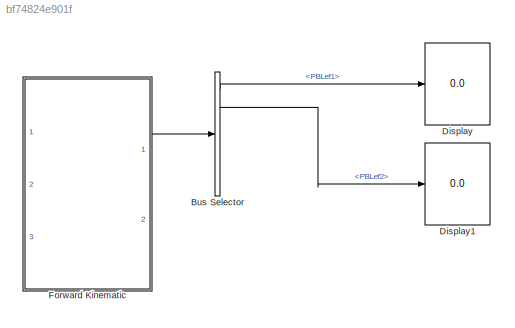
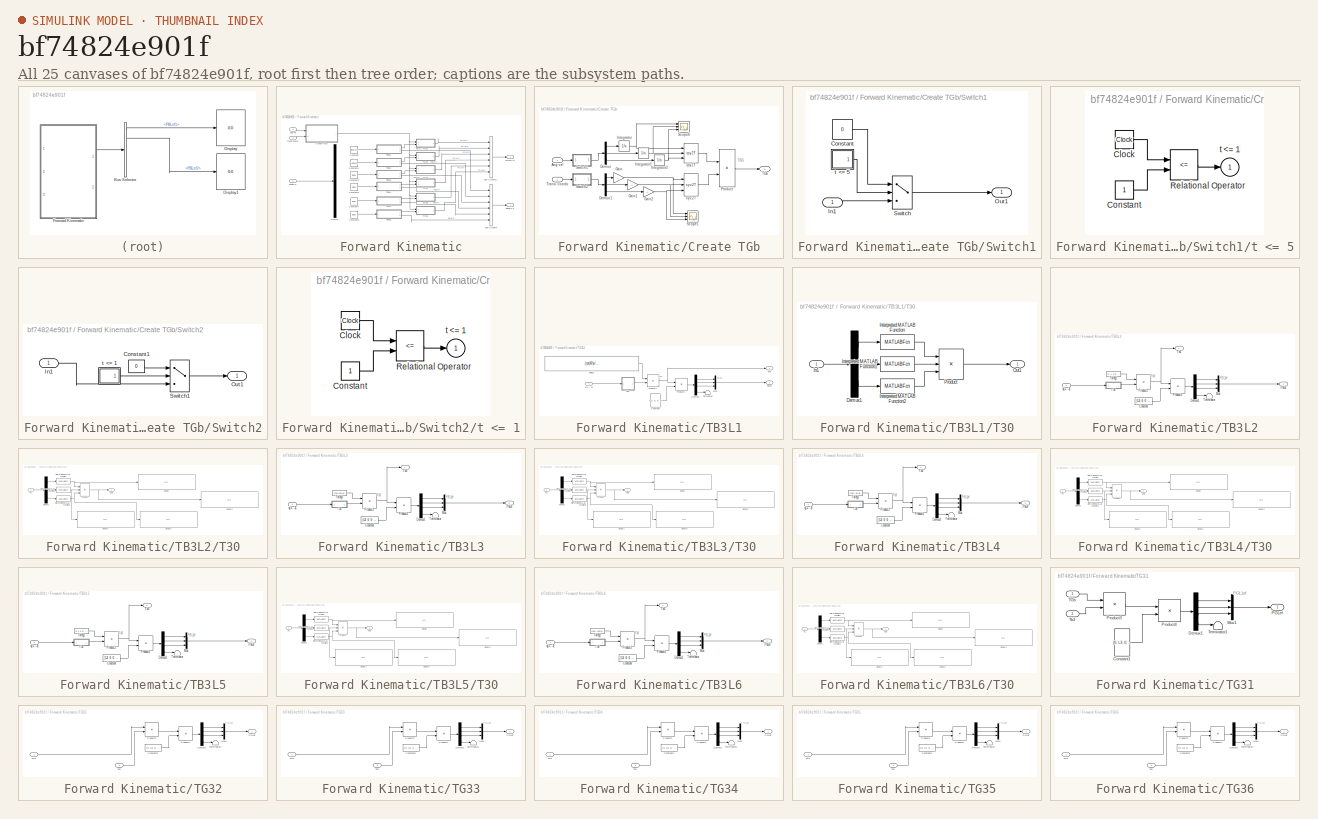
[diagram: thumbnail index - all 25 canvases of the model, root first then tree order]
MODEL slx_bf74824e901f
KIND model
CONFIG AbsTol = auto
CONFIG FixedStep = auto
CONFIG MaxStep = auto
CONFIG MinStep = auto
CONFIG RelTol = 1e-3
CONFIG SampleTimeConstraint = Unconstrained
CONFIG Solver = ode45
CONFIG SolverMode = Auto
CONFIG SolverName = ode45
CONFIG StartTime = 0.0
CONFIG StopTime = 10.0
BLOCK [BusSelector] Bus Selector
  OutputSignals = PBLef1,PBLef2,PBLef3,PBLef4,PBLef5,PBLef6
  Ports = [1, 6]
BLOCK [Display] Display
  Decimation = 1
  Ports = [1]
BLOCK [Display] Display1
  Decimation = 1
  Ports = [1]
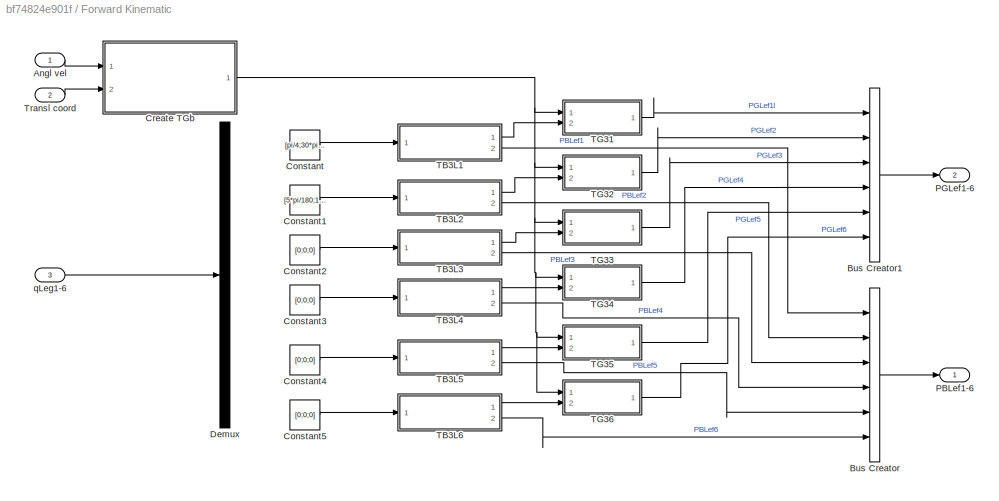
BLOCK [SubSystem] Forward Kinematic
  Ports = [3, 2]
  RequestExecContextInheritance = off
BLOCK [Inport] Forward Kinematic/Angl vel
  IconDisplay = Port number
BLOCK [BusCreator] Forward Kinematic/Bus Creator
  DisplayOption = bar
  Inputs = 6
  Ports = [6, 1]
BLOCK [BusCreator] Forward Kinematic/Bus Creator1
  DisplayOption = bar
  Inputs = 6
  Ports = [6, 1]
BLOCK [Constant] Forward Kinematic/Constant
  Value = [pi/4;30*pi/180;0]
BLOCK [Constant] Forward Kinematic/Constant1
  Value = [5*pi/180;18*pi/180;27*pi/180]
BLOCK [Constant] Forward Kinematic/Constant2
  Value = [0;0;0]
BLOCK [Constant] Forward Kinematic/Constant3
  Value = [0;0;0]
BLOCK [Constant] Forward Kinematic/Constant4
  Value = [0;0;0]
BLOCK [Constant] Forward Kinematic/Constant5
  Value = [0;0;0]
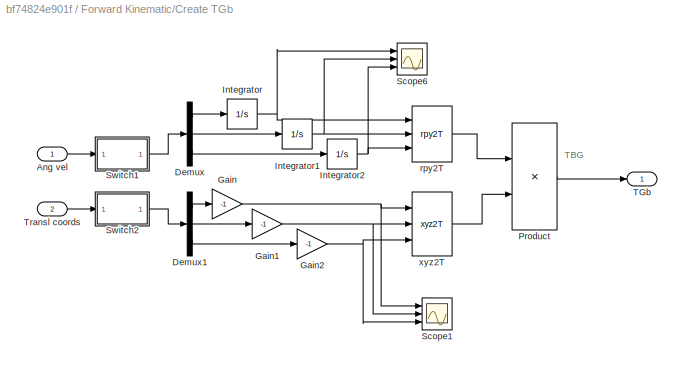
BLOCK [SubSystem] Forward Kinematic/Create TGb
  Ports = [2, 1]
  RequestExecContextInheritance = off
BLOCK [Inport] Forward Kinematic/Create TGb/Ang vel
  IconDisplay = Port number
BLOCK [Demux] Forward Kinematic/Create TGb/Demux
  DisplayOption = bar
  Outputs = 3
  Ports = [1, 3]
BLOCK [Demux] Forward Kinematic/Create TGb/Demux1
  DisplayOption = bar
  Outputs = 3
  Ports = [1, 3]
BLOCK [Gain] Forward Kinematic/Create TGb/Gain
  Gain = -1
  OutDataTypeStr = Inherit: Inherit via internal rule
  ParamDataTypeStr = Inherit: Inherit via internal rule
  SaturateOnIntegerOverflow = off
BLOCK [Gain] Forward Kinematic/Create TGb/Gain1
  Gain = -1
  OutDataTypeStr = Inherit: Inherit via internal rule
  ParamDataTypeStr = Inherit: Inherit via internal rule
  SaturateOnIntegerOverflow = off
BLOCK [Gain] Forward Kinematic/Create TGb/Gain2
  Gain = -1
  OutDataTypeStr = Inherit: Inherit via internal rule
  ParamDataTypeStr = Inherit: Inherit via internal rule
  SaturateOnIntegerOverflow = off
BLOCK [Integrator] Forward Kinematic/Create TGb/Integrator
  Ports = [1, 1]
BLOCK [Integrator] Forward Kinematic/Create TGb/Integrator1
  Ports = [1, 1]
BLOCK [Integrator] Forward Kinematic/Create TGb/Integrator2
  Ports = [1, 1]
BLOCK [Product] Forward Kinematic/Create TGb/Product
  InputSameDT = off
  Multiplication = Matrix(*)
  OutDataTypeStr = Inherit: Inherit via internal rule
  Ports = [2, 1]
  RndMeth = Floor
  SaturateOnIntegerOverflow = off
BLOCK [Scope] Forward Kinematic/Create TGb/Scope1
  Floating = off
  LimitDataPoints = off
  NumInputPorts = 3
  Ports = [3]
  SaveName = ScopeData38
  YMax = 20~5~5
  YMin = -15~-5~-5
BLOCK [Scope] Forward Kinematic/Create TGb/Scope6
  Floating = off
  LimitDataPoints = off
  NumInputPorts = 3
  Ports = [3]
  SaveName = ScopeData48
  YMax = 20~5~5
  YMin = -15~-5~-5
BLOCK [SubSystem] Forward Kinematic/Create TGb/Switch1
  Ports = [1, 1]
  RequestExecContextInheritance = off
BLOCK [Constant] Forward Kinematic/Create TGb/Switch1/Constant
  Value = 0
BLOCK [Inport] Forward Kinematic/Create TGb/Switch1/In1
  IconDisplay = Port number
BLOCK [Outport] Forward Kinematic/Create TGb/Switch1/Out1
  IconDisplay = Port number
BLOCK [Switch] Forward Kinematic/Create TGb/Switch1/Switch
  Threshold = 0.5
BLOCK [SubSystem] Forward Kinematic/Create TGb/Switch1/t <= 5
  Ports = [0, 1]
  RequestExecContextInheritance = off
BLOCK [Clock] Forward Kinematic/Create TGb/Switch1/t <= 5/Clock
BLOCK [Constant] Forward Kinematic/Create TGb/Switch1/t <= 5/Constant
BLOCK [RelationalOperator] Forward Kinematic/Create TGb/Switch1/t <= 5/Relational Operator
  Operator = <=
  Ports = [2, 1]
BLOCK [Outport] Forward Kinematic/Create TGb/Switch1/t <= 5/t <= 1
  IconDisplay = Port number
  InitialOutput = 0
BLOCK [SubSystem] Forward Kinematic/Create TGb/Switch2
  Ports = [1, 1]
  RequestExecContextInheritance = off
BLOCK [Constant] Forward Kinematic/Create TGb/Switch2/Constant1
  Value = 0
BLOCK [Inport] Forward Kinematic/Create TGb/Switch2/In1
  IconDisplay = Port number
BLOCK [Outport] Forward Kinematic/Create TGb/Switch2/Out1
  IconDisplay = Port number
BLOCK [Switch] Forward Kinematic/Create TGb/Switch2/Switch1
  Threshold = 0.5
BLOCK [SubSystem] Forward Kinematic/Create TGb/Switch2/t <= 1
  Ports = [0, 1]
  RequestExecContextInheritance = off
BLOCK [Clock] Forward Kinematic/Create TGb/Switch2/t <= 1/Clock
BLOCK [Constant] Forward Kinematic/Create TGb/Switch2/t <= 1/Constant
BLOCK [RelationalOperator] Forward Kinematic/Create TGb/Switch2/t <= 1/Relational Operator
  Operator = <=
  Ports = [2, 1]
BLOCK [Outport] Forward Kinematic/Create TGb/Switch2/t <= 1/t <= 1
  IconDisplay = Port number
  InitialOutput = 0
BLOCK [Outport] Forward Kinematic/Create TGb/TGb
  IconDisplay = Port number
BLOCK [Inport] Forward Kinematic/Create TGb/Transl coords
  IconDisplay = Port number
  Port = 2
BLOCK [Reference] Forward Kinematic/Create TGb/rpy2T  REF=roblocks/Transform Conversion/rpy2T  (lib defined in mdl_2a292b13c81b, mdl_69400f8cfe22, +12 more)
  Ports = [3, 1]
  SourceBlock = roblocks/Transform Conversion/rpy2T
BLOCK [Reference] Forward Kinematic/Create TGb/xyz2T  REF=roblocks/Transform Conversion/xyz2T  (lib defined in mdl_2a292b13c81b, mdl_69400f8cfe22, +12 more)
  Ports = [3, 1]
  SourceBlock = roblocks/Transform Conversion/xyz2T
BLOCK [Demux] Forward Kinematic/Demux
  DisplayOption = bar
  Outputs = 6
  Ports = [1, 6]
BLOCK [Outport] Forward Kinematic/PBLef1-6
  IconDisplay = Port number
BLOCK [Outport] Forward Kinematic/PGLef1-6
  IconDisplay = Port number
  Port = 2
BLOCK [SubSystem] Forward Kinematic/TB3L1
  Ports = [1, 2]
  RequestExecContextInheritance = off
BLOCK [Constant] Forward Kinematic/TB3L1/Constant
  Value = [L3; 0; 0; 1]
  VectorParams1D = off
BLOCK [Demux] Forward Kinematic/TB3L1/Demux2
  DisplayOption = bar
  Ports = [1, 4]
BLOCK [Mux] Forward Kinematic/TB3L1/Mux
  DisplayOption = bar
  Inputs = 3
  Ports = [3, 1]
BLOCK [Outport] Forward Kinematic/TB3L1/PbLef
  IconDisplay = Port number
  Port = 2
BLOCK [Product] Forward Kinematic/TB3L1/Product1
  InputSameDT = off
  Multiplication = Matrix(*)
  OutDataTypeStr = Inherit: Inherit via internal rule
  Ports = [2, 1]
  RndMeth = Floor
  SaturateOnIntegerOverflow = off
BLOCK [Product] Forward Kinematic/TB3L1/Product2
  InputSameDT = off
  Multiplication = Matrix(*)
  OutDataTypeStr = Inherit: Inherit via internal rule
  Ports = [2, 1]
  RndMeth = Floor
  SaturateOnIntegerOverflow = off
BLOCK [SubSystem] Forward Kinematic/TB3L1/T30
  Ports = [1, 1]
  RequestExecContextInheritance = off
BLOCK [Demux] Forward Kinematic/TB3L1/T30/Demux1
  DisplayOption = bar
  Outputs = 3
  Ports = [1, 3]
BLOCK [Inport] Forward Kinematic/TB3L1/T30/In1
  IconDisplay = Port number
BLOCK [MATLABFcn] Forward Kinematic/TB3L1/T30/Interpreted MATLAB Function
  MATLABFcn = [cos(u) -sin(u) 0 0; sin(u) cos(u) 0 0; 0 0 1 d1; 0 0 0 1]
  Output1D = off
  Ports = [1, 1]
BLOCK [MATLABFcn] Forward Kinematic/TB3L1/T30/Interpreted MATLAB Function1
  MATLABFcn = [cos(u) -sin(u) 0 L1; 0 0 -1 0; sin(u) cos(u) 0 -abs(d2); 0 0 0 1]
  Output1D = off
  Ports = [1, 1]
BLOCK [MATLABFcn] Forward Kinematic/TB3L1/T30/Interpreted MATLAB Function2
  MATLABFcn = [cos(u+90*pi/180) -sin(u+90*pi/180) 0 L2; -sin(u+90*pi/180) -cos(u+90*pi/180) 0 0; 0 0 -1 0; 0 0 0 1]
  Output1D = off
  Ports = [1, 1]
BLOCK [Outport] Forward Kinematic/TB3L1/T30/Out1
  IconDisplay = Port number
BLOCK [Product] Forward Kinematic/TB3L1/T30/Product
  InputSameDT = off
  Inputs = 3
  Multiplication = Matrix(*)
  OutDataTypeStr = Inherit: Inherit via internal rule
  Ports = [3, 1]
  RndMeth = Floor
  SaturateOnIntegerOverflow = off
BLOCK [Outport] Forward Kinematic/TB3L1/Tb3
  IconDisplay = Port number
BLOCK [Constant] Forward Kinematic/TB3L1/Tbleg1
  Value = [cos(45*pi/180) -sin(45*pi/180) 0 bL/2; sin(45*pi/180) cos(45*pi/180) 0 bWs/2; 0 0 1 0; 0 0 0 1]
  VectorParams1D = off
BLOCK [Terminator] Forward Kinematic/TB3L1/Terminator
BLOCK [Inport] Forward Kinematic/TB3L1/q[1...3]
  IconDisplay = Port number
BLOCK [SubSystem] Forward Kinematic/TB3L2
  Ports = [1, 2]
  RequestExecContextInheritance = off
BLOCK [Constant] Forward Kinematic/TB3L2/Constant
  Value = [L3; 0; 0; 1]
  VectorParams1D = off
BLOCK [Demux] Forward Kinematic/TB3L2/Demux2
  DisplayOption = bar
  Ports = [1, 4]
BLOCK [Mux] Forward Kinematic/TB3L2/Mux
  DisplayOption = bar
  Inputs = 3
  Ports = [3, 1]
BLOCK [Outport] Forward Kinematic/TB3L2/PbLef
  IconDisplay = Port number
  Port = 2
BLOCK [Product] Forward Kinematic/TB3L2/Product1
  InputSameDT = off
  Multiplication = Matrix(*)
  OutDataTypeStr = Inherit: Inherit via internal rule
  Ports = [2, 1]
  RndMeth = Floor
  SaturateOnIntegerOverflow = off
BLOCK [Product] Forward Kinematic/TB3L2/Product2
  InputSameDT = off
  Multiplication = Matrix(*)
  OutDataTypeStr = Inherit: Inherit via internal rule
  Ports = [2, 1]
  RndMeth = Floor
  SaturateOnIntegerOverflow = off
BLOCK [SubSystem] Forward Kinematic/TB3L2/T30
  Ports = [1, 1]
  RequestExecContextInheritance = off
BLOCK [Demux] Forward Kinematic/TB3L2/T30/Demux1
  DisplayOption = bar
  Outputs = 3
  Ports = [1, 3]
BLOCK [Display] Forward Kinematic/TB3L2/T30/Display
  Decimation = 1
  Ports = [1]
BLOCK [Display] Forward Kinematic/TB3L2/T30/Display1
  Decimation = 1
  Ports = [1]
BLOCK [Display] Forward Kinematic/TB3L2/T30/Display2
  Decimation = 1
  Ports = [1]
BLOCK [Display] Forward Kinematic/TB3L2/T30/Display3
  Decimation = 1
  Ports = [1]
BLOCK [Inport] Forward Kinematic/TB3L2/T30/In1
  IconDisplay = Port number
BLOCK [MATLABFcn] Forward Kinematic/TB3L2/T30/Interpreted MATLAB Function
  MATLABFcn = [cos(u) -sin(u) 0 0; sin(u) cos(u) 0 0; 0 0 1 d1; 0 0 0 1]
  Output1D = off
  Ports = [1, 1]
BLOCK [MATLABFcn] Forward Kinematic/TB3L2/T30/Interpreted MATLAB Function1
  MATLABFcn = [cos(u) -sin(u) 0 L1; 0 0 -1 0; sin(u) cos(u) 0 -abs(d2); 0 0 0 1]
  Output1D = off
  Ports = [1, 1]
BLOCK [MATLABFcn] Forward Kinematic/TB3L2/T30/Interpreted MATLAB Function2
  MATLABFcn = [cos(u+90*pi/180) -sin(u+90*pi/180) 0 L2; -sin(u+90*pi/180) -cos(u+90*pi/180) 0 0; 0 0 -1 0; 0 0 0 1]
  Output1D = off
  Ports = [1, 1]
BLOCK [Outport] Forward Kinematic/TB3L2/T30/Out1
  IconDisplay = Port number
BLOCK [Product] Forward Kinematic/TB3L2/T30/Product
  InputSameDT = off
  Inputs = 3
  Multiplication = Matrix(*)
  OutDataTypeStr = Inherit: Inherit via internal rule
  Ports = [3, 1]
  RndMeth = Floor
  SaturateOnIntegerOverflow = off
BLOCK [Outport] Forward Kinematic/TB3L2/Tb3
  IconDisplay = Port number
BLOCK [Constant] Forward Kinematic/TB3L2/Tbleg1
  Value = [0 -1 0 0; 1 0 0 bWb/2; 0 0 1 0; 0 0 0 1]
  VectorParams1D = off
BLOCK [Terminator] Forward Kinematic/TB3L2/Terminator
BLOCK [Inport] Forward Kinematic/TB3L2/q[1...3]
  IconDisplay = Port number
BLOCK [SubSystem] Forward Kinematic/TB3L3
  Ports = [1, 2]
  RequestExecContextInheritance = off
BLOCK [Constant] Forward Kinematic/TB3L3/Constant
  Value = [L3; 0; 0; 1]
  VectorParams1D = off
BLOCK [Demux] Forward Kinematic/TB3L3/Demux2
  DisplayOption = bar
  Ports = [1, 4]
BLOCK [Mux] Forward Kinematic/TB3L3/Mux
  DisplayOption = bar
  Inputs = 3
  Ports = [3, 1]
BLOCK [Outport] Forward Kinematic/TB3L3/PbLef
  IconDisplay = Port number
  Port = 2
BLOCK [Product] Forward Kinematic/TB3L3/Product1
  InputSameDT = off
  Multiplication = Matrix(*)
  OutDataTypeStr = Inherit: Inherit via internal rule
  Ports = [2, 1]
  RndMeth = Floor
  SaturateOnIntegerOverflow = off
BLOCK [Product] Forward Kinematic/TB3L3/Product2
  InputSameDT = off
  Multiplication = Matrix(*)
  OutDataTypeStr = Inherit: Inherit via internal rule
  Ports = [2, 1]
  RndMeth = Floor
  SaturateOnIntegerOverflow = off
BLOCK [SubSystem] Forward Kinematic/TB3L3/T30
  Ports = [1, 1]
  RequestExecContextInheritance = off
BLOCK [Demux] Forward Kinematic/TB3L3/T30/Demux1
  DisplayOption = bar
  Outputs = 3
  Ports = [1, 3]
BLOCK [Display] Forward Kinematic/TB3L3/T30/Display
  Decimation = 1
  Ports = [1]
BLOCK [Display] Forward Kinematic/TB3L3/T30/Display1
  Decimation = 1
  Ports = [1]
BLOCK [Display] Forward Kinematic/TB3L3/T30/Display2
  Decimation = 1
  Ports = [1]
BLOCK [Display] Forward Kinematic/TB3L3/T30/Display3
  Decimation = 1
  Ports = [1]
BLOCK [Inport] Forward Kinematic/TB3L3/T30/In1
  IconDisplay = Port number
BLOCK [MATLABFcn] Forward Kinematic/TB3L3/T30/Interpreted MATLAB Function
  MATLABFcn = [cos(u) -sin(u) 0 0; sin(u) cos(u) 0 0; 0 0 1 d1; 0 0 0 1]
  Output1D = off
  Ports = [1, 1]
BLOCK [MATLABFcn] Forward Kinematic/TB3L3/T30/Interpreted MATLAB Function1
  MATLABFcn = [cos(u) -sin(u) 0 L1; 0 0 -1 0; sin(u) cos(u) 0 -abs(d2); 0 0 0 1]
  Output1D = off
  Ports = [1, 1]
BLOCK [MATLABFcn] Forward Kinematic/TB3L3/T30/Interpreted MATLAB Function2
  MATLABFcn = [cos(u+90*pi/180) -sin(u+90*pi/180) 0 L2; -sin(u+90*pi/180) -cos(u+90*pi/180) 0 0; 0 0 -1 0; 0 0 0 1]
  Output1D = off
  Ports = [1, 1]
BLOCK [Outport] Forward Kinematic/TB3L3/T30/Out1
  IconDisplay = Port number
BLOCK [Product] Forward Kinematic/TB3L3/T30/Product
  InputSameDT = off
  Inputs = 3
  Multiplication = Matrix(*)
  OutDataTypeStr = Inherit: Inherit via internal rule
  Ports = [3, 1]
  RndMeth = Floor
  SaturateOnIntegerOverflow = off
BLOCK [Outport] Forward Kinematic/TB3L3/Tb3
  IconDisplay = Port number
BLOCK [Constant] Forward Kinematic/TB3L3/Tbleg3
  Value = [cos(135*pi/180) -sin(135*pi/180) 0 -bL/2; sin(135*pi/180) cos(135*pi/180) 0 bWs/2; 0 0 1 0; 0 0 0 1]
  VectorParams1D = off
BLOCK [Terminator] Forward Kinematic/TB3L3/Terminator
BLOCK [Inport] Forward Kinematic/TB3L3/q[1...3]
  IconDisplay = Port number
BLOCK [SubSystem] Forward Kinematic/TB3L4
  Ports = [1, 2]
  RequestExecContextInheritance = off
BLOCK [Constant] Forward Kinematic/TB3L4/Constant
  Value = [L3; 0; 0; 1]
  VectorParams1D = off
BLOCK [Demux] Forward Kinematic/TB3L4/Demux2
  DisplayOption = bar
  Ports = [1, 4]
BLOCK [Mux] Forward Kinematic/TB3L4/Mux
  DisplayOption = bar
  Inputs = 3
  Ports = [3, 1]
BLOCK [Outport] Forward Kinematic/TB3L4/PbLef
  IconDisplay = Port number
  Port = 2
BLOCK [Product] Forward Kinematic/TB3L4/Product1
  InputSameDT = off
  Multiplication = Matrix(*)
  OutDataTypeStr = Inherit: Inherit via internal rule
  Ports = [2, 1]
  RndMeth = Floor
  SaturateOnIntegerOverflow = off
BLOCK [Product] Forward Kinematic/TB3L4/Product2
  InputSameDT = off
  Multiplication = Matrix(*)
  OutDataTypeStr = Inherit: Inherit via internal rule
  Ports = [2, 1]
  RndMeth = Floor
  SaturateOnIntegerOverflow = off
BLOCK [SubSystem] Forward Kinematic/TB3L4/T30
  Ports = [1, 1]
  RequestExecContextInheritance = off
BLOCK [Demux] Forward Kinematic/TB3L4/T30/Demux1
  DisplayOption = bar
  Outputs = 3
  Ports = [1, 3]
BLOCK [Display] Forward Kinematic/TB3L4/T30/Display
  Decimation = 1
  Ports = [1]
BLOCK [Display] Forward Kinematic/TB3L4/T30/Display1
  Decimation = 1
  Ports = [1]
BLOCK [Display] Forward Kinematic/TB3L4/T30/Display2
  Decimation = 1
  Ports = [1]
BLOCK [Display] Forward Kinematic/TB3L4/T30/Display3
  Decimation = 1
  Ports = [1]
BLOCK [Inport] Forward Kinematic/TB3L4/T30/In1
  IconDisplay = Port number
BLOCK [MATLABFcn] Forward Kinematic/TB3L4/T30/Interpreted MATLAB Function
  MATLABFcn = [cos(u) -sin(u) 0 0; sin(u) cos(u) 0 0; 0 0 1 d1; 0 0 0 1]
  Output1D = off
  Ports = [1, 1]
BLOCK [MATLABFcn] Forward Kinematic/TB3L4/T30/Interpreted MATLAB Function1
  MATLABFcn = [cos(u) -sin(u) 0 L1; 0 0 -1 0; sin(u) cos(u) 0 -abs(d2); 0 0 0 1]
  Output1D = off
  Ports = [1, 1]
BLOCK [MATLABFcn] Forward Kinematic/TB3L4/T30/Interpreted MATLAB Function2
  MATLABFcn = [cos(u+90*pi/180) -sin(u+90*pi/180) 0 L2; -sin(u+90*pi/180) -cos(u+90*pi/180) 0 0; 0 0 -1 0; 0 0 0 1]
  Output1D = off
  Ports = [1, 1]
BLOCK [Outport] Forward Kinematic/TB3L4/T30/Out1
  IconDisplay = Port number
BLOCK [Product] Forward Kinematic/TB3L4/T30/Product
  InputSameDT = off
  Inputs = 3
  Multiplication = Matrix(*)
  OutDataTypeStr = Inherit: Inherit via internal rule
  Ports = [3, 1]
  RndMeth = Floor
  SaturateOnIntegerOverflow = off
BLOCK [Outport] Forward Kinematic/TB3L4/Tb3
  IconDisplay = Port number
BLOCK [Constant] Forward Kinematic/TB3L4/Tbleg1
  Value = [cos(-45*pi/180) -sin(-45*pi/180) 0 bL/2; sin(-45*pi/180) cos(-45*pi/180) 0 -bWs/2; 0 0 1 0; 0 0 0 1]
  VectorParams1D = off
BLOCK [Terminator] Forward Kinematic/TB3L4/Terminator
BLOCK [Inport] Forward Kinematic/TB3L4/q[1...3]
  IconDisplay = Port number
BLOCK [SubSystem] Forward Kinematic/TB3L5
  Ports = [1, 2]
  RequestExecContextInheritance = off
BLOCK [Constant] Forward Kinematic/TB3L5/Constant
  Value = [L3; 0; 0; 1]
  VectorParams1D = off
BLOCK [Demux] Forward Kinematic/TB3L5/Demux2
  DisplayOption = bar
  Ports = [1, 4]
BLOCK [Mux] Forward Kinematic/TB3L5/Mux
  DisplayOption = bar
  Inputs = 3
  Ports = [3, 1]
BLOCK [Outport] Forward Kinematic/TB3L5/PbLef
  IconDisplay = Port number
  Port = 2
BLOCK [Product] Forward Kinematic/TB3L5/Product1
  InputSameDT = off
  Multiplication = Matrix(*)
  OutDataTypeStr = Inherit: Inherit via internal rule
  Ports = [2, 1]
  RndMeth = Floor
  SaturateOnIntegerOverflow = off
BLOCK [Product] Forward Kinematic/TB3L5/Product2
  InputSameDT = off
  Multiplication = Matrix(*)
  OutDataTypeStr = Inherit: Inherit via internal rule
  Ports = [2, 1]
  RndMeth = Floor
  SaturateOnIntegerOverflow = off
BLOCK [SubSystem] Forward Kinematic/TB3L5/T30
  Ports = [1, 1]
  RequestExecContextInheritance = off
BLOCK [Demux] Forward Kinematic/TB3L5/T30/Demux1
  DisplayOption = bar
  Outputs = 3
  Ports = [1, 3]
BLOCK [Display] Forward Kinematic/TB3L5/T30/Display
  Decimation = 1
  Ports = [1]
BLOCK [Display] Forward Kinematic/TB3L5/T30/Display1
  Decimation = 1
  Ports = [1]
BLOCK [Display] Forward Kinematic/TB3L5/T30/Display2
  Decimation = 1
  Ports = [1]
BLOCK [Display] Forward Kinematic/TB3L5/T30/Display3
  Decimation = 1
  Ports = [1]
BLOCK [Inport] Forward Kinematic/TB3L5/T30/In1
  IconDisplay = Port number
BLOCK [MATLABFcn] Forward Kinematic/TB3L5/T30/Interpreted MATLAB Function
  MATLABFcn = [cos(u) -sin(u) 0 0; sin(u) cos(u) 0 0; 0 0 1 d1; 0 0 0 1]
  Output1D = off
  Ports = [1, 1]
BLOCK [MATLABFcn] Forward Kinematic/TB3L5/T30/Interpreted MATLAB Function1
  MATLABFcn = [cos(u) -sin(u) 0 L1; 0 0 -1 0; sin(u) cos(u) 0 -abs(d2); 0 0 0 1]
  Output1D = off
  Ports = [1, 1]
BLOCK [MATLABFcn] Forward Kinematic/TB3L5/T30/Interpreted MATLAB Function2
  MATLABFcn = [cos(u+90*pi/180) -sin(u+90*pi/180) 0 L2; -sin(u+90*pi/180) -cos(u+90*pi/180) 0 0; 0 0 -1 0; 0 0 0 1]
  Output1D = off
  Ports = [1, 1]
BLOCK [Outport] Forward Kinematic/TB3L5/T30/Out1
  IconDisplay = Port number
BLOCK [Product] Forward Kinematic/TB3L5/T30/Product
  InputSameDT = off
  Inputs = 3
  Multiplication = Matrix(*)
  OutDataTypeStr = Inherit: Inherit via internal rule
  Ports = [3, 1]
  RndMeth = Floor
  SaturateOnIntegerOverflow = off
BLOCK [Outport] Forward Kinematic/TB3L5/Tb3
  IconDisplay = Port number
BLOCK [Constant] Forward Kinematic/TB3L5/Tbleg1
  Value = [0 1 0 0; -1 0 0 -bWb/2; 0 0 1 0; 0 0 0 1]
  VectorParams1D = off
BLOCK [Terminator] Forward Kinematic/TB3L5/Terminator
BLOCK [Inport] Forward Kinematic/TB3L5/q[1...3]
  IconDisplay = Port number
BLOCK [SubSystem] Forward Kinematic/TB3L6
  Ports = [1, 2]
  RequestExecContextInheritance = off
BLOCK [Constant] Forward Kinematic/TB3L6/Constant
  Value = [L3; 0; 0; 1]
  VectorParams1D = off
BLOCK [Demux] Forward Kinematic/TB3L6/Demux2
  DisplayOption = bar
  Ports = [1, 4]
BLOCK [Mux] Forward Kinematic/TB3L6/Mux
  DisplayOption = bar
  Inputs = 3
  Ports = [3, 1]
BLOCK [Outport] Forward Kinematic/TB3L6/PbLef
  IconDisplay = Port number
  Port = 2
BLOCK [Product] Forward Kinematic/TB3L6/Product1
  InputSameDT = off
  Multiplication = Matrix(*)
  OutDataTypeStr = Inherit: Inherit via internal rule
  Ports = [2, 1]
  RndMeth = Floor
  SaturateOnIntegerOverflow = off
BLOCK [Product] Forward Kinematic/TB3L6/Product2
  InputSameDT = off
  Multiplication = Matrix(*)
  OutDataTypeStr = Inherit: Inherit via internal rule
  Ports = [2, 1]
  RndMeth = Floor
  SaturateOnIntegerOverflow = off
BLOCK [SubSystem] Forward Kinematic/TB3L6/T30
  Ports = [1, 1]
  RequestExecContextInheritance = off
BLOCK [Demux] Forward Kinematic/TB3L6/T30/Demux1
  DisplayOption = bar
  Outputs = 3
  Ports = [1, 3]
BLOCK [Display] Forward Kinematic/TB3L6/T30/Display
  Decimation = 1
  Ports = [1]
BLOCK [Display] Forward Kinematic/TB3L6/T30/Display1
  Decimation = 1
  Ports = [1]
BLOCK [Display] Forward Kinematic/TB3L6/T30/Display2
  Decimation = 1
  Ports = [1]
BLOCK [Display] Forward Kinematic/TB3L6/T30/Display3
  Decimation = 1
  Ports = [1]
BLOCK [Inport] Forward Kinematic/TB3L6/T30/In1
  IconDisplay = Port number
BLOCK [MATLABFcn] Forward Kinematic/TB3L6/T30/Interpreted MATLAB Function
  MATLABFcn = [cos(u) -sin(u) 0 0; sin(u) cos(u) 0 0; 0 0 1 d1; 0 0 0 1]
  Output1D = off
  Ports = [1, 1]
BLOCK [MATLABFcn] Forward Kinematic/TB3L6/T30/Interpreted MATLAB Function1
  MATLABFcn = [cos(u) -sin(u) 0 L1; 0 0 -1 0; sin(u) cos(u) 0 -abs(d2); 0 0 0 1]
  Output1D = off
  Ports = [1, 1]
BLOCK [MATLABFcn] Forward Kinematic/TB3L6/T30/Interpreted MATLAB Function2
  MATLABFcn = [cos(u+90*pi/180) -sin(u+90*pi/180) 0 L2; -sin(u+90*pi/180) -cos(u+90*pi/180) 0 0; 0 0 -1 0; 0 0 0 1]
  Output1D = off
  Ports = [1, 1]
BLOCK [Outport] Forward Kinematic/TB3L6/T30/Out1
  IconDisplay = Port number
BLOCK [Product] Forward Kinematic/TB3L6/T30/Product
  InputSameDT = off
  Inputs = 3
  Multiplication = Matrix(*)
  OutDataTypeStr = Inherit: Inherit via internal rule
  Ports = [3, 1]
  RndMeth = Floor
  SaturateOnIntegerOverflow = off
BLOCK [Outport] Forward Kinematic/TB3L6/Tb3
  IconDisplay = Port number
BLOCK [Constant] Forward Kinematic/TB3L6/Tbleg1
  Value = [cos(-135*pi/180) -sin(-135*pi/180) 0 -bL/2; sin(-135*pi/180) cos(-135*pi/180) 0 -bWs/2; 0 0 1 0; 0 0 0 1]
  VectorParams1D = off
BLOCK [Terminator] Forward Kinematic/TB3L6/Terminator
BLOCK [Inport] Forward Kinematic/TB3L6/q[1...3]
  IconDisplay = Port number
BLOCK [SubSystem] Forward Kinematic/TG31
  Ports = [2, 1]
  RequestExecContextInheritance = off
BLOCK [Constant] Forward Kinematic/TG31/Constant1
  Value = [0; L3; 0; 1]
  VectorParams1D = off
BLOCK [Demux] Forward Kinematic/TG31/Demux1
  DisplayOption = bar
  Ports = [1, 4]
BLOCK [Mux] Forward Kinematic/TG31/Mux1
  DisplayOption = bar
  Inputs = 3
  Ports = [3, 1]
BLOCK [Outport] Forward Kinematic/TG31/PGLef
  IconDisplay = Port number
BLOCK [Product] Forward Kinematic/TG31/Product3
  InputSameDT = off
  Multiplication = Matrix(*)
  OutDataTypeStr = Inherit: Inherit via internal rule
  Ports = [2, 1]
  RndMeth = Floor
  SaturateOnIntegerOverflow = off
BLOCK [Product] Forward Kinematic/TG31/Product4
  InputSameDT = off
  Multiplication = Matrix(*)
  OutDataTypeStr = Inherit: Inherit via internal rule
  Ports = [2, 1]
  RndMeth = Floor
  SaturateOnIntegerOverflow = off
BLOCK [Inport] Forward Kinematic/TG31/TGb
  IconDisplay = Port number
BLOCK [Inport] Forward Kinematic/TG31/Tb3
  IconDisplay = Port number
  Port = 2
BLOCK [Terminator] Forward Kinematic/TG31/Terminator1
BLOCK [SubSystem] Forward Kinematic/TG32
  Ports = [2, 1]
  RequestExecContextInheritance = off
BLOCK [Constant] Forward Kinematic/TG32/Constant1
  Value = [0; L3; 0; 1]
  VectorParams1D = off
BLOCK [Demux] Forward Kinematic/TG32/Demux1
  DisplayOption = bar
  Ports = [1, 4]
BLOCK [Mux] Forward Kinematic/TG32/Mux1
  DisplayOption = bar
  Inputs = 3
  Ports = [3, 1]
BLOCK [Outport] Forward Kinematic/TG32/PGLef
  IconDisplay = Port number
BLOCK [Product] Forward Kinematic/TG32/Product3
  InputSameDT = off
  Multiplication = Matrix(*)
  OutDataTypeStr = Inherit: Inherit via internal rule
  Ports = [2, 1]
  RndMeth = Floor
  SaturateOnIntegerOverflow = off
BLOCK [Product] Forward Kinematic/TG32/Product4
  InputSameDT = off
  Multiplication = Matrix(*)
  OutDataTypeStr = Inherit: Inherit via internal rule
  Ports = [2, 1]
  RndMeth = Floor
  SaturateOnIntegerOverflow = off
BLOCK [Inport] Forward Kinematic/TG32/TGb
  IconDisplay = Port number
BLOCK [Inport] Forward Kinematic/TG32/Tb3
  IconDisplay = Port number
  Port = 2
BLOCK [Terminator] Forward Kinematic/TG32/Terminator1
BLOCK [SubSystem] Forward Kinematic/TG33
  Ports = [2, 1]
  RequestExecContextInheritance = off
BLOCK [Constant] Forward Kinematic/TG33/Constant1
  Value = [0; L3; 0; 1]
  VectorParams1D = off
BLOCK [Demux] Forward Kinematic/TG33/Demux1
  DisplayOption = bar
  Ports = [1, 4]
BLOCK [Mux] Forward Kinematic/TG33/Mux1
  DisplayOption = bar
  Inputs = 3
  Ports = [3, 1]
BLOCK [Outport] Forward Kinematic/TG33/PGLef
  IconDisplay = Port number
BLOCK [Product] Forward Kinematic/TG33/Product3
  InputSameDT = off
  Multiplication = Matrix(*)
  OutDataTypeStr = Inherit: Inherit via internal rule
  Ports = [2, 1]
  RndMeth = Floor
  SaturateOnIntegerOverflow = off
BLOCK [Product] Forward Kinematic/TG33/Product4
  InputSameDT = off
  Multiplication = Matrix(*)
  OutDataTypeStr = Inherit: Inherit via internal rule
  Ports = [2, 1]
  RndMeth = Floor
  SaturateOnIntegerOverflow = off
BLOCK [Inport] Forward Kinematic/TG33/TGb
  IconDisplay = Port number
BLOCK [Inport] Forward Kinematic/TG33/Tb3
  IconDisplay = Port number
  Port = 2
BLOCK [Terminator] Forward Kinematic/TG33/Terminator1
BLOCK [SubSystem] Forward Kinematic/TG34
  Ports = [2, 1]
  RequestExecContextInheritance = off
BLOCK [Constant] Forward Kinematic/TG34/Constant1
  Value = [0; L3; 0; 1]
  VectorParams1D = off
BLOCK [Demux] Forward Kinematic/TG34/Demux1
  DisplayOption = bar
  Ports = [1, 4]
BLOCK [Mux] Forward Kinematic/TG34/Mux1
  DisplayOption = bar
  Inputs = 3
  Ports = [3, 1]
BLOCK [Outport] Forward Kinematic/TG34/PGLef
  IconDisplay = Port number
BLOCK [Product] Forward Kinematic/TG34/Product3
  InputSameDT = off
  Multiplication = Matrix(*)
  OutDataTypeStr = Inherit: Inherit via internal rule
  Ports = [2, 1]
  RndMeth = Floor
  SaturateOnIntegerOverflow = off
BLOCK [Product] Forward Kinematic/TG34/Product4
  InputSameDT = off
  Multiplication = Matrix(*)
  OutDataTypeStr = Inherit: Inherit via internal rule
  Ports = [2, 1]
  RndMeth = Floor
  SaturateOnIntegerOverflow = off
BLOCK [Inport] Forward Kinematic/TG34/TGb
  IconDisplay = Port number
BLOCK [Inport] Forward Kinematic/TG34/Tb3
  IconDisplay = Port number
  Port = 2
BLOCK [Terminator] Forward Kinematic/TG34/Terminator1
BLOCK [SubSystem] Forward Kinematic/TG35
  Ports = [2, 1]
  RequestExecContextInheritance = off
BLOCK [Constant] Forward Kinematic/TG35/Constant1
  Value = [0; L3; 0; 1]
  VectorParams1D = off
BLOCK [Demux] Forward Kinematic/TG35/Demux1
  DisplayOption = bar
  Ports = [1, 4]
BLOCK [Mux] Forward Kinematic/TG35/Mux1
  DisplayOption = bar
  Inputs = 3
  Ports = [3, 1]
BLOCK [Outport] Forward Kinematic/TG35/PGLef
  IconDisplay = Port number
BLOCK [Product] Forward Kinematic/TG35/Product3
  InputSameDT = off
  Multiplication = Matrix(*)
  OutDataTypeStr = Inherit: Inherit via internal rule
  Ports = [2, 1]
  RndMeth = Floor
  SaturateOnIntegerOverflow = off
BLOCK [Product] Forward Kinematic/TG35/Product4
  InputSameDT = off
  Multiplication = Matrix(*)
  OutDataTypeStr = Inherit: Inherit via internal rule
  Ports = [2, 1]
  RndMeth = Floor
  SaturateOnIntegerOverflow = off
BLOCK [Inport] Forward Kinematic/TG35/TGb
  IconDisplay = Port number
BLOCK [Inport] Forward Kinematic/TG35/Tb3
  IconDisplay = Port number
  Port = 2
BLOCK [Terminator] Forward Kinematic/TG35/Terminator1
BLOCK [SubSystem] Forward Kinematic/TG36
  Ports = [2, 1]
  RequestExecContextInheritance = off
BLOCK [Constant] Forward Kinematic/TG36/Constant1
  Value = [0; L3; 0; 1]
  VectorParams1D = off
BLOCK [Demux] Forward Kinematic/TG36/Demux1
  DisplayOption = bar
  Ports = [1, 4]
BLOCK [Mux] Forward Kinematic/TG36/Mux1
  DisplayOption = bar
  Inputs = 3
  Ports = [3, 1]
BLOCK [Outport] Forward Kinematic/TG36/PGLef
  IconDisplay = Port number
BLOCK [Product] Forward Kinematic/TG36/Product3
  InputSameDT = off
  Multiplication = Matrix(*)
  OutDataTypeStr = Inherit: Inherit via internal rule
  Ports = [2, 1]
  RndMeth = Floor
  SaturateOnIntegerOverflow = off
BLOCK [Product] Forward Kinematic/TG36/Product4
  InputSameDT = off
  Multiplication = Matrix(*)
  OutDataTypeStr = Inherit: Inherit via internal rule
  Ports = [2, 1]
  RndMeth = Floor
  SaturateOnIntegerOverflow = off
BLOCK [Inport] Forward Kinematic/TG36/TGb
  IconDisplay = Port number
BLOCK [Inport] Forward Kinematic/TG36/Tb3
  IconDisplay = Port number
  Port = 2
BLOCK [Terminator] Forward Kinematic/TG36/Terminator1
BLOCK [Inport] Forward Kinematic/Transl coord
  IconDisplay = Port number
  Port = 2
BLOCK [Inport] Forward Kinematic/qLeg1-6
  IconDisplay = Port number
  Port = 3
ANNOTATION Forward Kinematic/Create TGb: TBG
ANNOTATION Forward Kinematic/TB3L1: PBL1ef
ANNOTATION Forward Kinematic/TB3L1: Tb3
ANNOTATION Forward Kinematic/TB3L2: PBL1ef
ANNOTATION Forward Kinematic/TB3L2: Tb3
ANNOTATION Forward Kinematic/TB3L3: PBL1ef
ANNOTATION Forward Kinematic/TB3L3: Tb3
ANNOTATION Forward Kinematic/TB3L4: PBL1ef
ANNOTATION Forward Kinematic/TB3L4: Tb3
ANNOTATION Forward Kinematic/TB3L5: PBL1ef
ANNOTATION Forward Kinematic/TB3L5: Tb3
ANNOTATION Forward Kinematic/TB3L6: PBL1ef
ANNOTATION Forward Kinematic/TB3L6: Tb3
ANNOTATION Forward Kinematic/TG31: PGL1ef
ANNOTATION Forward Kinematic/TG32: PGL1ef
ANNOTATION Forward Kinematic/TG33: PGL1ef
ANNOTATION Forward Kinematic/TG34: PGL1ef
ANNOTATION Forward Kinematic/TG35: PGL1ef
ANNOTATION Forward Kinematic/TG36: PGL1ef
LINE Bus Selector:1 -> Display:1
LINE Bus Selector:2 -> Display1:1
LINE Forward Kinematic/Angl vel:1 -> Forward Kinematic/Create TGb:1
LINE Forward Kinematic/Bus Creator1:1 -> Forward Kinematic/PGLef1-6:1
LINE Forward Kinematic/Bus Creator:1 -> Forward Kinematic/PBLef1-6:1
LINE Forward Kinematic/Constant1:1 -> Forward Kinematic/TB3L2:1
LINE Forward Kinematic/Constant2:1 -> Forward Kinematic/TB3L3:1
LINE Forward Kinematic/Constant3:1 -> Forward Kinematic/TB3L4:1
LINE Forward Kinematic/Constant4:1 -> Forward Kinematic/TB3L5:1
LINE Forward Kinematic/Constant5:1 -> Forward Kinematic/TB3L6:1
LINE Forward Kinematic/Constant:1 -> Forward Kinematic/TB3L1:1
LINE Forward Kinematic/Create TGb/Ang vel:1 -> Forward Kinematic/Create TGb/Switch1:1
LINE Forward Kinematic/Create TGb/Demux1:1 -> Forward Kinematic/Create TGb/Gain:1
LINE Forward Kinematic/Create TGb/Demux1:2 -> Forward Kinematic/Create TGb/Gain1:1
LINE Forward Kinematic/Create TGb/Demux1:3 -> Forward Kinematic/Create TGb/Gain2:1
LINE Forward Kinematic/Create TGb/Demux:1 -> Forward Kinematic/Create TGb/Integrator:1
LINE Forward Kinematic/Create TGb/Demux:2 -> Forward Kinematic/Create TGb/Integrator1:1
LINE Forward Kinematic/Create TGb/Demux:3 -> Forward Kinematic/Create TGb/Integrator2:1
NET Forward Kinematic/Create TGb/Gain1:1 -> Forward Kinematic/Create TGb/Scope1:2, Forward Kinematic/Create TGb/xyz2T:2
NET Forward Kinematic/Create TGb/Gain2:1 -> Forward Kinematic/Create TGb/Scope1:3, Forward Kinematic/Create TGb/xyz2T:3
NET Forward Kinematic/Create TGb/Gain:1 -> Forward Kinematic/Create TGb/Scope1:1, Forward Kinematic/Create TGb/xyz2T:1
NET Forward Kinematic/Create TGb/Integrator1:1 -> Forward Kinematic/Create TGb/Scope6:2, Forward Kinematic/Create TGb/rpy2T:2
NET Forward Kinematic/Create TGb/Integrator2:1 -> Forward Kinematic/Create TGb/Scope6:3, Forward Kinematic/Create TGb/rpy2T:3
NET Forward Kinematic/Create TGb/Integrator:1 -> Forward Kinematic/Create TGb/Scope6:1, Forward Kinematic/Create TGb/rpy2T:1
LINE Forward Kinematic/Create TGb/Product:1 -> Forward Kinematic/Create TGb/TGb:1
LINE Forward Kinematic/Create TGb/Switch1/Constant:1 -> Forward Kinematic/Create TGb/Switch1/Switch:1
LINE Forward Kinematic/Create TGb/Switch1/In1:1 -> Forward Kinematic/Create TGb/Switch1/Switch:3
LINE Forward Kinematic/Create TGb/Switch1/Switch:1 -> Forward Kinematic/Create TGb/Switch1/Out1:1
LINE Forward Kinematic/Create TGb/Switch1/t <= 5/Clock:1 -> Forward Kinematic/Create TGb/Switch1/t <= 5/Relational Operator:1
LINE Forward Kinematic/Create TGb/Switch1/t <= 5/Constant:1 -> Forward Kinematic/Create TGb/Switch1/t <= 5/Relational Operator:2
LINE Forward Kinematic/Create TGb/Switch1/t <= 5/Relational Operator:1 -> Forward Kinematic/Create TGb/Switch1/t <= 5/t <= 1:1
LINE Forward Kinematic/Create TGb/Switch1/t <= 5:1 -> Forward Kinematic/Create TGb/Switch1/Switch:2
LINE Forward Kinematic/Create TGb/Switch1:1 -> Forward Kinematic/Create TGb/Demux:1
LINE Forward Kinematic/Create TGb/Switch2/Constant1:1 -> Forward Kinematic/Create TGb/Switch2/Switch1:1
LINE Forward Kinematic/Create TGb/Switch2/In1:1 -> Forward Kinematic/Create TGb/Switch2/Switch1:3
LINE Forward Kinematic/Create TGb/Switch2/Switch1:1 -> Forward Kinematic/Create TGb/Switch2/Out1:1
LINE Forward Kinematic/Create TGb/Switch2/t <= 1/Clock:1 -> Forward Kinematic/Create TGb/Switch2/t <= 1/Relational Operator:1
LINE Forward Kinematic/Create TGb/Switch2/t <= 1/Constant:1 -> Forward Kinematic/Create TGb/Switch2/t <= 1/Relational Operator:2
LINE Forward Kinematic/Create TGb/Switch2/t <= 1/Relational Operator:1 -> Forward Kinematic/Create TGb/Switch2/t <= 1/t <= 1:1
LINE Forward Kinematic/Create TGb/Switch2/t <= 1:1 -> Forward Kinematic/Create TGb/Switch2/Switch1:2
LINE Forward Kinematic/Create TGb/Switch2:1 -> Forward Kinematic/Create TGb/Demux1:1
LINE Forward Kinematic/Create TGb/Transl coords:1 -> Forward Kinematic/Create TGb/Switch2:1
LINE Forward Kinematic/Create TGb/rpy2T:1 -> Forward Kinematic/Create TGb/Product:1
LINE Forward Kinematic/Create TGb/xyz2T:1 -> Forward Kinematic/Create TGb/Product:2
NET Forward Kinematic/Create TGb:1 -> Forward Kinematic/TG31:1, Forward Kinematic/TG32:1, Forward Kinematic/TG33:1, Forward Kinematic/TG34:1, Forward Kinematic/TG35:1, Forward Kinematic/TG36:1
LINE Forward Kinematic/TB3L1/Constant:1 -> Forward Kinematic/TB3L1/Product1:2
LINE Forward Kinematic/TB3L1/Demux2:1 -> Forward Kinematic/TB3L1/Mux:1
LINE Forward Kinematic/TB3L1/Demux2:2 -> Forward Kinematic/TB3L1/Mux:2
LINE Forward Kinematic/TB3L1/Demux2:3 -> Forward Kinematic/TB3L1/Mux:3
LINE Forward Kinematic/TB3L1/Demux2:4 -> Forward Kinematic/TB3L1/Terminator:1
LINE Forward Kinematic/TB3L1/Mux:1 -> Forward Kinematic/TB3L1/PbLef:1
LINE Forward Kinematic/TB3L1/Product1:1 -> Forward Kinematic/TB3L1/Demux2:1
NET Forward Kinematic/TB3L1/Product2:1 -> Forward Kinematic/TB3L1/Product1:1, Forward Kinematic/TB3L1/Tb3:1
LINE Forward Kinematic/TB3L1/T30/Demux1:1 -> Forward Kinematic/TB3L1/T30/Interpreted MATLAB Function:1
LINE Forward Kinematic/TB3L1/T30/Demux1:2 -> Forward Kinematic/TB3L1/T30/Interpreted MATLAB Function1:1
LINE Forward Kinematic/TB3L1/T30/Demux1:3 -> Forward Kinematic/TB3L1/T30/Interpreted MATLAB Function2:1
LINE Forward Kinematic/TB3L1/T30/In1:1 -> Forward Kinematic/TB3L1/T30/Demux1:1
LINE Forward Kinematic/TB3L1/T30/Interpreted MATLAB Function1:1 -> Forward Kinematic/TB3L1/T30/Product:2
LINE Forward Kinematic/TB3L1/T30/Interpreted MATLAB Function2:1 -> Forward Kinematic/TB3L1/T30/Product:3
LINE Forward Kinematic/TB3L1/T30/Interpreted MATLAB Function:1 -> Forward Kinematic/TB3L1/T30/Product:1
LINE Forward Kinematic/TB3L1/T30/Product:1 -> Forward Kinematic/TB3L1/T30/Out1:1
LINE Forward Kinematic/TB3L1/T30:1 -> Forward Kinematic/TB3L1/Product2:2
LINE Forward Kinematic/TB3L1/Tbleg1:1 -> Forward Kinematic/TB3L1/Product2:1
LINE Forward Kinematic/TB3L1/q[1...3]:1 -> Forward Kinematic/TB3L1/T30:1
LINE Forward Kinematic/TB3L1:1 -> Forward Kinematic/TG31:2
LINE Forward Kinematic/TB3L1:2 -> Forward Kinematic/Bus Creator:1
LINE Forward Kinematic/TB3L2/Constant:1 -> Forward Kinematic/TB3L2/Product1:2
LINE Forward Kinematic/TB3L2/Demux2:1 -> Forward Kinematic/TB3L2/Mux:1
LINE Forward Kinematic/TB3L2/Demux2:2 -> Forward Kinematic/TB3L2/Mux:2
LINE Forward Kinematic/TB3L2/Demux2:3 -> Forward Kinematic/TB3L2/Mux:3
LINE Forward Kinematic/TB3L2/Demux2:4 -> Forward Kinematic/TB3L2/Terminator:1
LINE Forward Kinematic/TB3L2/Mux:1 -> Forward Kinematic/TB3L2/PbLef:1
LINE Forward Kinematic/TB3L2/Product1:1 -> Forward Kinematic/TB3L2/Demux2:1
NET Forward Kinematic/TB3L2/Product2:1 -> Forward Kinematic/TB3L2/Product1:1, Forward Kinematic/TB3L2/Tb3:1
LINE Forward Kinematic/TB3L2/T30/Demux1:1 -> Forward Kinematic/TB3L2/T30/Interpreted MATLAB Function:1
LINE Forward Kinematic/TB3L2/T30/Demux1:2 -> Forward Kinematic/TB3L2/T30/Interpreted MATLAB Function1:1
LINE Forward Kinematic/TB3L2/T30/Demux1:3 -> Forward Kinematic/TB3L2/T30/Interpreted MATLAB Function2:1
LINE Forward Kinematic/TB3L2/T30/In1:1 -> Forward Kinematic/TB3L2/T30/Demux1:1
NET Forward Kinematic/TB3L2/T30/Interpreted MATLAB Function1:1 -> Forward Kinematic/TB3L2/T30/Display1:1, Forward Kinematic/TB3L2/T30/Product:2
NET Forward Kinematic/TB3L2/T30/Interpreted MATLAB Function2:1 -> Forward Kinematic/TB3L2/T30/Display2:1, Forward Kinematic/TB3L2/T30/Product:3
NET Forward Kinematic/TB3L2/T30/Interpreted MATLAB Function:1 -> Forward Kinematic/TB3L2/T30/Display:1, Forward Kinematic/TB3L2/T30/Product:1
NET Forward Kinematic/TB3L2/T30/Product:1 -> Forward Kinematic/TB3L2/T30/Display3:1, Forward Kinematic/TB3L2/T30/Out1:1
LINE Forward Kinematic/TB3L2/T30:1 -> Forward Kinematic/TB3L2/Product2:2
LINE Forward Kinematic/TB3L2/Tbleg1:1 -> Forward Kinematic/TB3L2/Product2:1
LINE Forward Kinematic/TB3L2/q[1...3]:1 -> Forward Kinematic/TB3L2/T30:1
LINE Forward Kinematic/TB3L2:1 -> Forward Kinematic/TG32:2
LINE Forward Kinematic/TB3L2:2 -> Forward Kinematic/Bus Creator:2
LINE Forward Kinematic/TB3L3/Constant:1 -> Forward Kinematic/TB3L3/Product1:2
LINE Forward Kinematic/TB3L3/Demux2:1 -> Forward Kinematic/TB3L3/Mux:1
LINE Forward Kinematic/TB3L3/Demux2:2 -> Forward Kinematic/TB3L3/Mux:2
LINE Forward Kinematic/TB3L3/Demux2:3 -> Forward Kinematic/TB3L3/Mux:3
LINE Forward Kinematic/TB3L3/Demux2:4 -> Forward Kinematic/TB3L3/Terminator:1
LINE Forward Kinematic/TB3L3/Mux:1 -> Forward Kinematic/TB3L3/PbLef:1
LINE Forward Kinematic/TB3L3/Product1:1 -> Forward Kinematic/TB3L3/Demux2:1
NET Forward Kinematic/TB3L3/Product2:1 -> Forward Kinematic/TB3L3/Product1:1, Forward Kinematic/TB3L3/Tb3:1
LINE Forward Kinematic/TB3L3/T30/Demux1:1 -> Forward Kinematic/TB3L3/T30/Interpreted MATLAB Function:1
LINE Forward Kinematic/TB3L3/T30/Demux1:2 -> Forward Kinematic/TB3L3/T30/Interpreted MATLAB Function1:1
LINE Forward Kinematic/TB3L3/T30/Demux1:3 -> Forward Kinematic/TB3L3/T30/Interpreted MATLAB Function2:1
LINE Forward Kinematic/TB3L3/T30/In1:1 -> Forward Kinematic/TB3L3/T30/Demux1:1
NET Forward Kinematic/TB3L3/T30/Interpreted MATLAB Function1:1 -> Forward Kinematic/TB3L3/T30/Display1:1, Forward Kinematic/TB3L3/T30/Product:2
NET Forward Kinematic/TB3L3/T30/Interpreted MATLAB Function2:1 -> Forward Kinematic/TB3L3/T30/Display2:1, Forward Kinematic/TB3L3/T30/Product:3
NET Forward Kinematic/TB3L3/T30/Interpreted MATLAB Function:1 -> Forward Kinematic/TB3L3/T30/Display:1, Forward Kinematic/TB3L3/T30/Product:1
NET Forward Kinematic/TB3L3/T30/Product:1 -> Forward Kinematic/TB3L3/T30/Display3:1, Forward Kinematic/TB3L3/T30/Out1:1
LINE Forward Kinematic/TB3L3/T30:1 -> Forward Kinematic/TB3L3/Product2:2
LINE Forward Kinematic/TB3L3/Tbleg3:1 -> Forward Kinematic/TB3L3/Product2:1
LINE Forward Kinematic/TB3L3/q[1...3]:1 -> Forward Kinematic/TB3L3/T30:1
LINE Forward Kinematic/TB3L3:1 -> Forward Kinematic/TG33:2
LINE Forward Kinematic/TB3L3:2 -> Forward Kinematic/Bus Creator:3
LINE Forward Kinematic/TB3L4/Constant:1 -> Forward Kinematic/TB3L4/Product1:2
LINE Forward Kinematic/TB3L4/Demux2:1 -> Forward Kinematic/TB3L4/Mux:1
LINE Forward Kinematic/TB3L4/Demux2:2 -> Forward Kinematic/TB3L4/Mux:2
LINE Forward Kinematic/TB3L4/Demux2:3 -> Forward Kinematic/TB3L4/Mux:3
LINE Forward Kinematic/TB3L4/Demux2:4 -> Forward Kinematic/TB3L4/Terminator:1
LINE Forward Kinematic/TB3L4/Mux:1 -> Forward Kinematic/TB3L4/PbLef:1
LINE Forward Kinematic/TB3L4/Product1:1 -> Forward Kinematic/TB3L4/Demux2:1
NET Forward Kinematic/TB3L4/Product2:1 -> Forward Kinematic/TB3L4/Product1:1, Forward Kinematic/TB3L4/Tb3:1
LINE Forward Kinematic/TB3L4/T30/Demux1:1 -> Forward Kinematic/TB3L4/T30/Interpreted MATLAB Function:1
LINE Forward Kinematic/TB3L4/T30/Demux1:2 -> Forward Kinematic/TB3L4/T30/Interpreted MATLAB Function1:1
LINE Forward Kinematic/TB3L4/T30/Demux1:3 -> Forward Kinematic/TB3L4/T30/Interpreted MATLAB Function2:1
LINE Forward Kinematic/TB3L4/T30/In1:1 -> Forward Kinematic/TB3L4/T30/Demux1:1
NET Forward Kinematic/TB3L4/T30/Interpreted MATLAB Function1:1 -> Forward Kinematic/TB3L4/T30/Display1:1, Forward Kinematic/TB3L4/T30/Product:2
NET Forward Kinematic/TB3L4/T30/Interpreted MATLAB Function2:1 -> Forward Kinematic/TB3L4/T30/Display2:1, Forward Kinematic/TB3L4/T30/Product:3
NET Forward Kinematic/TB3L4/T30/Interpreted MATLAB Function:1 -> Forward Kinematic/TB3L4/T30/Display:1, Forward Kinematic/TB3L4/T30/Product:1
NET Forward Kinematic/TB3L4/T30/Product:1 -> Forward Kinematic/TB3L4/T30/Display3:1, Forward Kinematic/TB3L4/T30/Out1:1
LINE Forward Kinematic/TB3L4/T30:1 -> Forward Kinematic/TB3L4/Product2:2
LINE Forward Kinematic/TB3L4/Tbleg1:1 -> Forward Kinematic/TB3L4/Product2:1
LINE Forward Kinematic/TB3L4/q[1...3]:1 -> Forward Kinematic/TB3L4/T30:1
LINE Forward Kinematic/TB3L4:1 -> Forward Kinematic/TG34:2
LINE Forward Kinematic/TB3L4:2 -> Forward Kinematic/Bus Creator:4
LINE Forward Kinematic/TB3L5/Constant:1 -> Forward Kinematic/TB3L5/Product1:2
LINE Forward Kinematic/TB3L5/Demux2:1 -> Forward Kinematic/TB3L5/Mux:1
LINE Forward Kinematic/TB3L5/Demux2:2 -> Forward Kinematic/TB3L5/Mux:2
LINE Forward Kinematic/TB3L5/Demux2:3 -> Forward Kinematic/TB3L5/Mux:3
LINE Forward Kinematic/TB3L5/Demux2:4 -> Forward Kinematic/TB3L5/Terminator:1
LINE Forward Kinematic/TB3L5/Mux:1 -> Forward Kinematic/TB3L5/PbLef:1
LINE Forward Kinematic/TB3L5/Product1:1 -> Forward Kinematic/TB3L5/Demux2:1
NET Forward Kinematic/TB3L5/Product2:1 -> Forward Kinematic/TB3L5/Product1:1, Forward Kinematic/TB3L5/Tb3:1
LINE Forward Kinematic/TB3L5/T30/Demux1:1 -> Forward Kinematic/TB3L5/T30/Interpreted MATLAB Function:1
LINE Forward Kinematic/TB3L5/T30/Demux1:2 -> Forward Kinematic/TB3L5/T30/Interpreted MATLAB Function1:1
LINE Forward Kinematic/TB3L5/T30/Demux1:3 -> Forward Kinematic/TB3L5/T30/Interpreted MATLAB Function2:1
LINE Forward Kinematic/TB3L5/T30/In1:1 -> Forward Kinematic/TB3L5/T30/Demux1:1
NET Forward Kinematic/TB3L5/T30/Interpreted MATLAB Function1:1 -> Forward Kinematic/TB3L5/T30/Display1:1, Forward Kinematic/TB3L5/T30/Product:2
NET Forward Kinematic/TB3L5/T30/Interpreted MATLAB Function2:1 -> Forward Kinematic/TB3L5/T30/Display2:1, Forward Kinematic/TB3L5/T30/Product:3
NET Forward Kinematic/TB3L5/T30/Interpreted MATLAB Function:1 -> Forward Kinematic/TB3L5/T30/Display:1, Forward Kinematic/TB3L5/T30/Product:1
NET Forward Kinematic/TB3L5/T30/Product:1 -> Forward Kinematic/TB3L5/T30/Display3:1, Forward Kinematic/TB3L5/T30/Out1:1
LINE Forward Kinematic/TB3L5/T30:1 -> Forward Kinematic/TB3L5/Product2:2
LINE Forward Kinematic/TB3L5/Tbleg1:1 -> Forward Kinematic/TB3L5/Product2:1
LINE Forward Kinematic/TB3L5/q[1...3]:1 -> Forward Kinematic/TB3L5/T30:1
LINE Forward Kinematic/TB3L5:1 -> Forward Kinematic/TG35:2
LINE Forward Kinematic/TB3L5:2 -> Forward Kinematic/Bus Creator:5
LINE Forward Kinematic/TB3L6/Constant:1 -> Forward Kinematic/TB3L6/Product1:2
LINE Forward Kinematic/TB3L6/Demux2:1 -> Forward Kinematic/TB3L6/Mux:1
LINE Forward Kinematic/TB3L6/Demux2:2 -> Forward Kinematic/TB3L6/Mux:2
LINE Forward Kinematic/TB3L6/Demux2:3 -> Forward Kinematic/TB3L6/Mux:3
LINE Forward Kinematic/TB3L6/Demux2:4 -> Forward Kinematic/TB3L6/Terminator:1
LINE Forward Kinematic/TB3L6/Mux:1 -> Forward Kinematic/TB3L6/PbLef:1
LINE Forward Kinematic/TB3L6/Product1:1 -> Forward Kinematic/TB3L6/Demux2:1
NET Forward Kinematic/TB3L6/Product2:1 -> Forward Kinematic/TB3L6/Product1:1, Forward Kinematic/TB3L6/Tb3:1
LINE Forward Kinematic/TB3L6/T30/Demux1:1 -> Forward Kinematic/TB3L6/T30/Interpreted MATLAB Function:1
LINE Forward Kinematic/TB3L6/T30/Demux1:2 -> Forward Kinematic/TB3L6/T30/Interpreted MATLAB Function1:1
LINE Forward Kinematic/TB3L6/T30/Demux1:3 -> Forward Kinematic/TB3L6/T30/Interpreted MATLAB Function2:1
LINE Forward Kinematic/TB3L6/T30/In1:1 -> Forward Kinematic/TB3L6/T30/Demux1:1
NET Forward Kinematic/TB3L6/T30/Interpreted MATLAB Function1:1 -> Forward Kinematic/TB3L6/T30/Display1:1, Forward Kinematic/TB3L6/T30/Product:2
NET Forward Kinematic/TB3L6/T30/Interpreted MATLAB Function2:1 -> Forward Kinematic/TB3L6/T30/Display2:1, Forward Kinematic/TB3L6/T30/Product:3
NET Forward Kinematic/TB3L6/T30/Interpreted MATLAB Function:1 -> Forward Kinematic/TB3L6/T30/Display:1, Forward Kinematic/TB3L6/T30/Product:1
NET Forward Kinematic/TB3L6/T30/Product:1 -> Forward Kinematic/TB3L6/T30/Display3:1, Forward Kinematic/TB3L6/T30/Out1:1
LINE Forward Kinematic/TB3L6/T30:1 -> Forward Kinematic/TB3L6/Product2:2
LINE Forward Kinematic/TB3L6/Tbleg1:1 -> Forward Kinematic/TB3L6/Product2:1
LINE Forward Kinematic/TB3L6/q[1...3]:1 -> Forward Kinematic/TB3L6/T30:1
LINE Forward Kinematic/TB3L6:1 -> Forward Kinematic/TG36:2
LINE Forward Kinematic/TB3L6:2 -> Forward Kinematic/Bus Creator:6
LINE Forward Kinematic/TG31/Constant1:1 -> Forward Kinematic/TG31/Product4:2
LINE Forward Kinematic/TG31/Demux1:1 -> Forward Kinematic/TG31/Mux1:1
LINE Forward Kinematic/TG31/Demux1:2 -> Forward Kinematic/TG31/Mux1:2
LINE Forward Kinematic/TG31/Demux1:3 -> Forward Kinematic/TG31/Mux1:3
LINE Forward Kinematic/TG31/Demux1:4 -> Forward Kinematic/TG31/Terminator1:1
LINE Forward Kinematic/TG31/Mux1:1 -> Forward Kinematic/TG31/PGLef:1
LINE Forward Kinematic/TG31/Product3:1 -> Forward Kinematic/TG31/Product4:1
LINE Forward Kinematic/TG31/Product4:1 -> Forward Kinematic/TG31/Demux1:1
LINE Forward Kinematic/TG31/TGb:1 -> Forward Kinematic/TG31/Product3:1
LINE Forward Kinematic/TG31/Tb3:1 -> Forward Kinematic/TG31/Product3:2
LINE Forward Kinematic/TG31:1 -> Forward Kinematic/Bus Creator1:1
LINE Forward Kinematic/TG32/Constant1:1 -> Forward Kinematic/TG32/Product4:2
LINE Forward Kinematic/TG32/Demux1:1 -> Forward Kinematic/TG32/Mux1:1
LINE Forward Kinematic/TG32/Demux1:2 -> Forward Kinematic/TG32/Mux1:2
LINE Forward Kinematic/TG32/Demux1:3 -> Forward Kinematic/TG32/Mux1:3
LINE Forward Kinematic/TG32/Demux1:4 -> Forward Kinematic/TG32/Terminator1:1
LINE Forward Kinematic/TG32/Mux1:1 -> Forward Kinematic/TG32/PGLef:1
LINE Forward Kinematic/TG32/Product3:1 -> Forward Kinematic/TG32/Product4:1
LINE Forward Kinematic/TG32/Product4:1 -> Forward Kinematic/TG32/Demux1:1
LINE Forward Kinematic/TG32/TGb:1 -> Forward Kinematic/TG32/Product3:1
LINE Forward Kinematic/TG32/Tb3:1 -> Forward Kinematic/TG32/Product3:2
LINE Forward Kinematic/TG32:1 -> Forward Kinematic/Bus Creator1:2
LINE Forward Kinematic/TG33/Constant1:1 -> Forward Kinematic/TG33/Product4:2
LINE Forward Kinematic/TG33/Demux1:1 -> Forward Kinematic/TG33/Mux1:1
LINE Forward Kinematic/TG33/Demux1:2 -> Forward Kinematic/TG33/Mux1:2
LINE Forward Kinematic/TG33/Demux1:3 -> Forward Kinematic/TG33/Mux1:3
LINE Forward Kinematic/TG33/Demux1:4 -> Forward Kinematic/TG33/Terminator1:1
LINE Forward Kinematic/TG33/Mux1:1 -> Forward Kinematic/TG33/PGLef:1
LINE Forward Kinematic/TG33/Product3:1 -> Forward Kinematic/TG33/Product4:1
LINE Forward Kinematic/TG33/Product4:1 -> Forward Kinematic/TG33/Demux1:1
LINE Forward Kinematic/TG33/TGb:1 -> Forward Kinematic/TG33/Product3:1
LINE Forward Kinematic/TG33/Tb3:1 -> Forward Kinematic/TG33/Product3:2
LINE Forward Kinematic/TG33:1 -> Forward Kinematic/Bus Creator1:3
LINE Forward Kinematic/TG34/Constant1:1 -> Forward Kinematic/TG34/Product4:2
LINE Forward Kinematic/TG34/Demux1:1 -> Forward Kinematic/TG34/Mux1:1
LINE Forward Kinematic/TG34/Demux1:2 -> Forward Kinematic/TG34/Mux1:2
LINE Forward Kinematic/TG34/Demux1:3 -> Forward Kinematic/TG34/Mux1:3
LINE Forward Kinematic/TG34/Demux1:4 -> Forward Kinematic/TG34/Terminator1:1
LINE Forward Kinematic/TG34/Mux1:1 -> Forward Kinematic/TG34/PGLef:1
LINE Forward Kinematic/TG34/Product3:1 -> Forward Kinematic/TG34/Product4:1
LINE Forward Kinematic/TG34/Product4:1 -> Forward Kinematic/TG34/Demux1:1
LINE Forward Kinematic/TG34/TGb:1 -> Forward Kinematic/TG34/Product3:1
LINE Forward Kinematic/TG34/Tb3:1 -> Forward Kinematic/TG34/Product3:2
LINE Forward Kinematic/TG34:1 -> Forward Kinematic/Bus Creator1:4
LINE Forward Kinematic/TG35/Constant1:1 -> Forward Kinematic/TG35/Product4:2
LINE Forward Kinematic/TG35/Demux1:1 -> Forward Kinematic/TG35/Mux1:1
LINE Forward Kinematic/TG35/Demux1:2 -> Forward Kinematic/TG35/Mux1:2
LINE Forward Kinematic/TG35/Demux1:3 -> Forward Kinematic/TG35/Mux1:3
LINE Forward Kinematic/TG35/Demux1:4 -> Forward Kinematic/TG35/Terminator1:1
LINE Forward Kinematic/TG35/Mux1:1 -> Forward Kinematic/TG35/PGLef:1
LINE Forward Kinematic/TG35/Product3:1 -> Forward Kinematic/TG35/Product4:1
LINE Forward Kinematic/TG35/Product4:1 -> Forward Kinematic/TG35/Demux1:1
LINE Forward Kinematic/TG35/TGb:1 -> Forward Kinematic/TG35/Product3:1
LINE Forward Kinematic/TG35/Tb3:1 -> Forward Kinematic/TG35/Product3:2
LINE Forward Kinematic/TG35:1 -> Forward Kinematic/Bus Creator1:5
LINE Forward Kinematic/TG36/Constant1:1 -> Forward Kinematic/TG36/Product4:2
LINE Forward Kinematic/TG36/Demux1:1 -> Forward Kinematic/TG36/Mux1:1
LINE Forward Kinematic/TG36/Demux1:2 -> Forward Kinematic/TG36/Mux1:2
LINE Forward Kinematic/TG36/Demux1:3 -> Forward Kinematic/TG36/Mux1:3
LINE Forward Kinematic/TG36/Demux1:4 -> Forward Kinematic/TG36/Terminator1:1
LINE Forward Kinematic/TG36/Mux1:1 -> Forward Kinematic/TG36/PGLef:1
LINE Forward Kinematic/TG36/Product3:1 -> Forward Kinematic/TG36/Product4:1
LINE Forward Kinematic/TG36/Product4:1 -> Forward Kinematic/TG36/Demux1:1
LINE Forward Kinematic/TG36/TGb:1 -> Forward Kinematic/TG36/Product3:1
LINE Forward Kinematic/TG36/Tb3:1 -> Forward Kinematic/TG36/Product3:2
LINE Forward Kinematic/TG36:1 -> Forward Kinematic/Bus Creator1:6
LINE Forward Kinematic/Transl coord:1 -> Forward Kinematic/Create TGb:2
LINE Forward Kinematic/qLeg1-6:1 -> Forward Kinematic/Demux:1
LINE Forward Kinematic:1 -> Bus Selector:1
note: NET lines group one-source signal fan-out (src -> all destinations, sorted); 1:1 wires keep LINE
